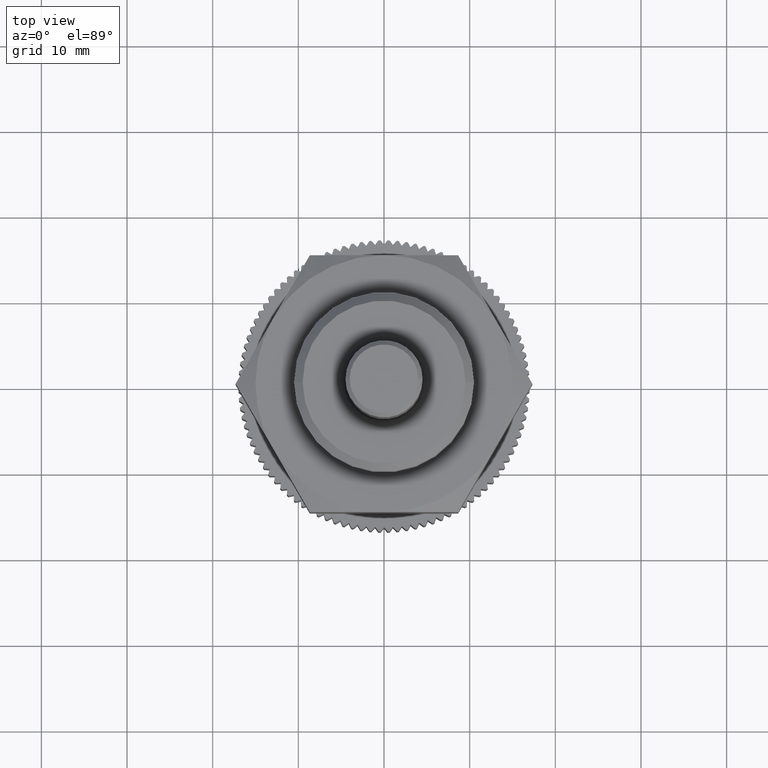
[diagram: clean part render]
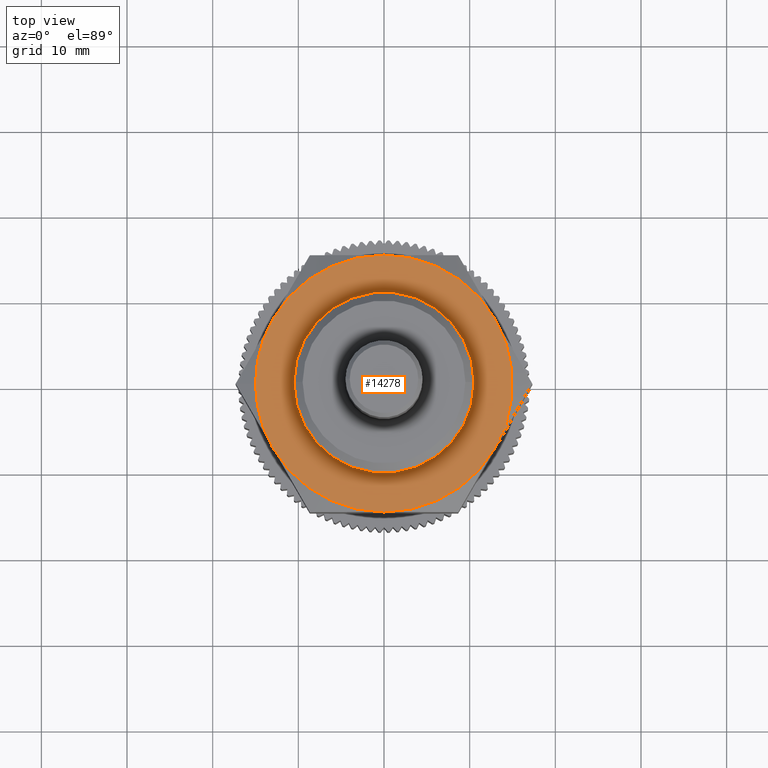
[diagram: same view with one face highlighted and labeled with its STEP entity id]
A machine part, top view. The second image highlights one B-rep face of the part: STEP entity #14278.
In plain terms, the highlighted planar face has unit normal (0, 0, -1).
Its self-contained STEP definition (entity closure, byte-faithful):
#175 = VERTEX_POINT ( 'NONE', #20466 ) ;
#305 = DIRECTION ( 'NONE',  ( -0.0000000000000000000, -0.0000000000000000000, -1.000000000000000000 ) ) ;
#1343 = CIRCLE ( 'NONE', #9086, 15.00000000000000000 ) ;
#2672 = EDGE_CURVE ( 'NONE', #11643, #6582, #5536, .T. ) ;
#3743 = AXIS2_PLACEMENT_3D ( 'NONE', #19964, #30619, #20315 ) ;
#4512 = AXIS2_PLACEMENT_3D ( 'NONE', #9985, #7718, #26023 ) ;
#4672 = CIRCLE ( 'NONE', #24116, 15.00000000000000000 ) ;
#4732 = CARTESIAN_POINT ( 'NONE',  ( 0.0000000000000000000, 0.0000000000000000000, -6.938893903907228378E-15 ) ) ;
#4809 = AXIS2_PLACEMENT_3D ( 'NONE', #4732, #7503, #15321 ) ;
#5536 = CIRCLE ( 'NONE', #12200, 10.40000000000000036 ) ;
#6582 = VERTEX_POINT ( 'NONE', #26933 ) ;
#6652 = CIRCLE ( 'NONE', #10548, 15.00000000000000000 ) ;
#7503 = DIRECTION ( 'NONE',  ( -0.0000000000000000000, -0.0000000000000000000, -1.000000000000000000 ) ) ;
#7545 = CARTESIAN_POINT ( 'NONE',  ( 10.40000000000000036, 1.273632671113247276E-15, 0.0000000000000000000 ) ) ;
#7718 = DIRECTION ( 'NONE',  ( -0.0000000000000000000, -0.0000000000000000000, -1.000000000000000000 ) ) ;
#7919 = DIRECTION ( 'NONE',  ( -1.000000000000000000, 0.0000000000000000000, 0.0000000000000000000 ) ) ;
#7993 = DIRECTION ( 'NONE',  ( -0.0000000000000000000, -0.0000000000000000000, -1.000000000000000000 ) ) ;
#8675 = CIRCLE ( 'NONE', #4809, 15.00000000000000000 ) ;
#8772 = ORIENTED_EDGE ( 'NONE', *, *, #32855, .F. ) ;
#8946 = ORIENTED_EDGE ( 'NONE', *, *, #10347, .F. ) ;
#9086 = AXIS2_PLACEMENT_3D ( 'NONE', #31685, #7993, #20675 ) ;
#9266 = CIRCLE ( 'NONE', #3743, 15.00000000000000000 ) ;
#9267 = FACE_OUTER_BOUND ( 'NONE', #11394, .T. ) ;
#9431 = DIRECTION ( 'NONE',  ( -1.000000000000000000, 0.0000000000000000000, -0.0000000000000000000 ) ) ;
#9985 = CARTESIAN_POINT ( 'NONE',  ( 0.0000000000000000000, 0.0000000000000000000, -6.938893903907228378E-15 ) ) ;
#10347 = EDGE_CURVE ( 'NONE', #10946, #18626, #9266, .T. ) ;
#10548 = AXIS2_PLACEMENT_3D ( 'NONE', #30169, #16392, #21968 ) ;
#10946 = VERTEX_POINT ( 'NONE', #15357 ) ;
#11394 = EDGE_LOOP ( 'NONE', ( #8772, #31889, #11521, #13724, #12904, #8946, #23239 ) ) ;
#11521 = ORIENTED_EDGE ( 'NONE', *, *, #12252, .F. ) ;
#11587 = DIRECTION ( 'NONE',  ( -1.000000000000000000, 0.0000000000000000000, 0.0000000000000000000 ) ) ;
#11643 = VERTEX_POINT ( 'NONE', #7545 ) ;
#12200 = AXIS2_PLACEMENT_3D ( 'NONE', #16937, #21843, #30052 ) ;
#12252 = EDGE_CURVE ( 'NONE', #17051, #16357, #4672, .T. ) ;
#12556 = EDGE_CURVE ( 'NONE', #16357, #20791, #25710, .T. ) ;
#12904 = ORIENTED_EDGE ( 'NONE', *, *, #25386, .F. ) ;
#13262 = ORIENTED_EDGE ( 'NONE', *, *, #2672, .F. ) ;
#13724 = ORIENTED_EDGE ( 'NONE', *, *, #24714, .F. ) ;
#14012 = CARTESIAN_POINT ( 'NONE',  ( 0.0000000000000000000, 0.0000000000000000000, -6.938893903907228378E-15 ) ) ;
#14041 = CARTESIAN_POINT ( 'NONE',  ( -12.99038105676658716, 7.500000000000004441, -6.938893903907228378E-15 ) ) ;
#14278 = ADVANCED_FACE ( 'NONE', ( #15011, #9267 ), #22683, .F. ) ;
#15011 = FACE_BOUND ( 'NONE', #19849, .T. ) ;
#15321 = DIRECTION ( 'NONE',  ( -1.000000000000000000, 0.0000000000000000000, 0.0000000000000000000 ) ) ;
#15357 = CARTESIAN_POINT ( 'NONE',  ( 12.99038105676657651, 7.500000000000004441, -6.938893903907228378E-15 ) ) ;
#15976 = AXIS2_PLACEMENT_3D ( 'NONE', #26311, #33942, #23503 ) ;
#16084 = CARTESIAN_POINT ( 'NONE',  ( 0.0000000000000000000, 0.0000000000000000000, -6.938893903907228378E-15 ) ) ;
#16357 = VERTEX_POINT ( 'NONE', #27243 ) ;
#16392 = DIRECTION ( 'NONE',  ( -0.0000000000000000000, -0.0000000000000000000, -1.000000000000000000 ) ) ;
#16422 = EDGE_CURVE ( 'NONE', #23933, #10946, #6652, .T. ) ;
#16603 = DIRECTION ( 'NONE',  ( -0.0000000000000000000, -0.0000000000000000000, -1.000000000000000000 ) ) ;
#16937 = CARTESIAN_POINT ( 'NONE',  ( 0.0000000000000000000, 0.0000000000000000000, 0.0000000000000000000 ) ) ;
#17051 = VERTEX_POINT ( 'NONE', #34036 ) ;
#18626 = VERTEX_POINT ( 'NONE', #22148 ) ;
#19849 = EDGE_LOOP ( 'NONE', ( #27239, #13262 ) ) ;
#19964 = CARTESIAN_POINT ( 'NONE',  ( 0.0000000000000000000, 0.0000000000000000000, -6.938893903907228378E-15 ) ) ;
#20315 = DIRECTION ( 'NONE',  ( -1.000000000000000000, 0.0000000000000000000, 0.0000000000000000000 ) ) ;
#20466 = CARTESIAN_POINT ( 'NONE',  ( 1.502314598737158440E-15, -14.99999999999999467, -6.938893903907228378E-15 ) ) ;
#20675 = DIRECTION ( 'NONE',  ( -1.000000000000000000, 0.0000000000000000000, 0.0000000000000000000 ) ) ;
#20791 = VERTEX_POINT ( 'NONE', #14041 ) ;
#21843 = DIRECTION ( 'NONE',  ( -0.0000000000000000000, -0.0000000000000000000, 1.000000000000000000 ) ) ;
#21968 = DIRECTION ( 'NONE',  ( -1.000000000000000000, 0.0000000000000000000, 0.0000000000000000000 ) ) ;
#22148 = CARTESIAN_POINT ( 'NONE',  ( 12.99038105676658539, -7.500000000000001776, -6.938893903907228378E-15 ) ) ;
#22683 = PLANE ( 'NONE',  #26529 ) ;
#23239 = ORIENTED_EDGE ( 'NONE', *, *, #16422, .F. ) ;
#23503 = DIRECTION ( 'NONE',  ( 1.000000000000000000, 0.0000000000000000000, 0.0000000000000000000 ) ) ;
#23933 = VERTEX_POINT ( 'NONE', #29397 ) ;
#24116 = AXIS2_PLACEMENT_3D ( 'NONE', #16084, #305, #7919 ) ;
#24714 = EDGE_CURVE ( 'NONE', #175, #17051, #1343, .T. ) ;
#25386 = EDGE_CURVE ( 'NONE', #18626, #175, #8675, .T. ) ;
#25668 = CARTESIAN_POINT ( 'NONE',  ( 31.11110000000000042, 0.0000000000000000000, 2.184276863320876864E-17 ) ) ;
#25710 = CIRCLE ( 'NONE', #4512, 15.00000000000000000 ) ;
#26023 = DIRECTION ( 'NONE',  ( -1.000000000000000000, 0.0000000000000000000, 0.0000000000000000000 ) ) ;
#26311 = CARTESIAN_POINT ( 'NONE',  ( 0.0000000000000000000, 0.0000000000000000000, 0.0000000000000000000 ) ) ;
#26529 = AXIS2_PLACEMENT_3D ( 'NONE', #25668, #33294, #9431 ) ;
#26933 = CARTESIAN_POINT ( 'NONE',  ( -10.40000000000000036, 0.0000000000000000000, 0.0000000000000000000 ) ) ;
#27068 = CIRCLE ( 'NONE', #30908, 15.00000000000000000 ) ;
#27239 = ORIENTED_EDGE ( 'NONE', *, *, #32076, .F. ) ;
#27243 = CARTESIAN_POINT ( 'NONE',  ( -15.00000000000000000, 0.0000000000000000000, -6.938893903907228378E-15 ) ) ;
#29359 = CIRCLE ( 'NONE', #15976, 10.40000000000000036 ) ;
#29397 = CARTESIAN_POINT ( 'NONE',  ( 0.0000000000000000000, 15.00000000000000355, -6.938893903907228378E-15 ) ) ;
#30052 = DIRECTION ( 'NONE',  ( 1.000000000000000000, 0.0000000000000000000, 0.0000000000000000000 ) ) ;
#30169 = CARTESIAN_POINT ( 'NONE',  ( 0.0000000000000000000, 0.0000000000000000000, -6.938893903907228378E-15 ) ) ;
#30619 = DIRECTION ( 'NONE',  ( -0.0000000000000000000, -0.0000000000000000000, -1.000000000000000000 ) ) ;
#30908 = AXIS2_PLACEMENT_3D ( 'NONE', #14012, #16603, #11587 ) ;
#31685 = CARTESIAN_POINT ( 'NONE',  ( 0.0000000000000000000, 0.0000000000000000000, -6.938893903907228378E-15 ) ) ;
#31889 = ORIENTED_EDGE ( 'NONE', *, *, #12556, .F. ) ;
#32076 = EDGE_CURVE ( 'NONE', #6582, #11643, #29359, .T. ) ;
#32855 = EDGE_CURVE ( 'NONE', #20791, #23933, #27068, .T. ) ;
#33294 = DIRECTION ( 'NONE',  ( 0.0000000000000000000, 0.0000000000000000000, -1.000000000000000000 ) ) ;
#33942 = DIRECTION ( 'NONE',  ( -0.0000000000000000000, -0.0000000000000000000, 1.000000000000000000 ) ) ;
#34036 = CARTESIAN_POINT ( 'NONE',  ( -12.99038105676657473, -7.500000000000006217, 0.0000000000000000000 ) ) ;